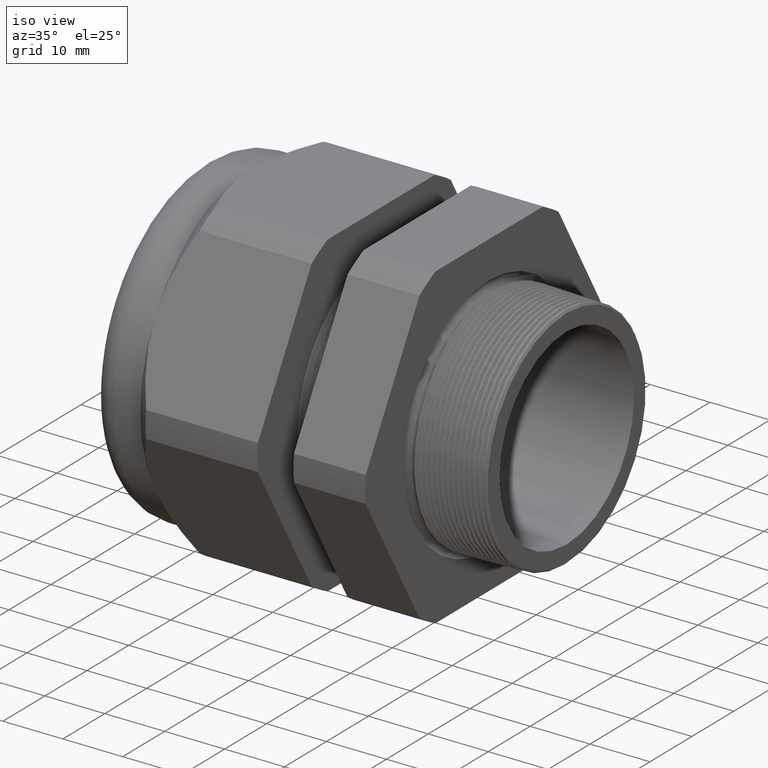
[diagram: clean part render]
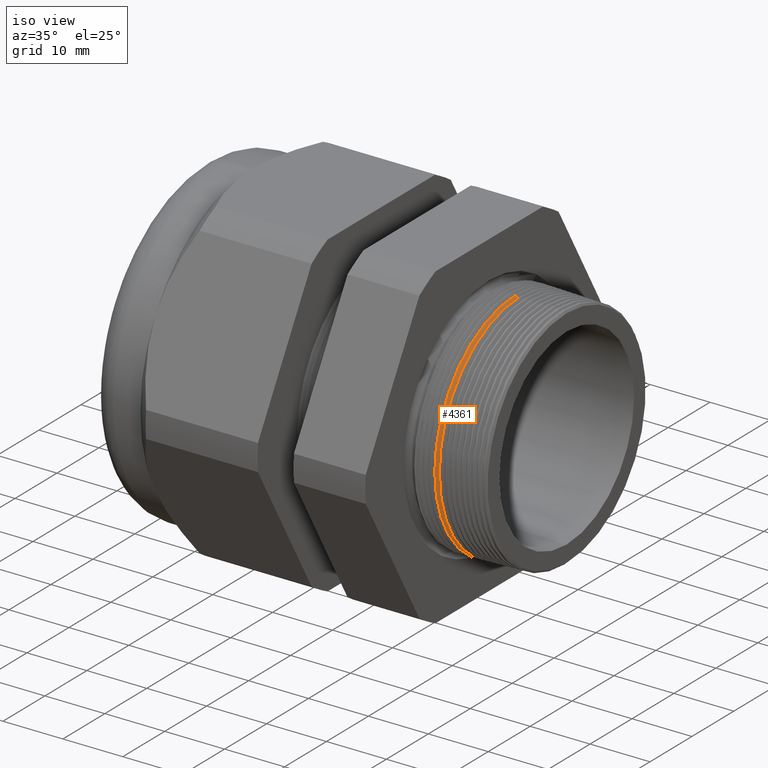
[diagram: same view with one face highlighted and labeled with its STEP entity id]
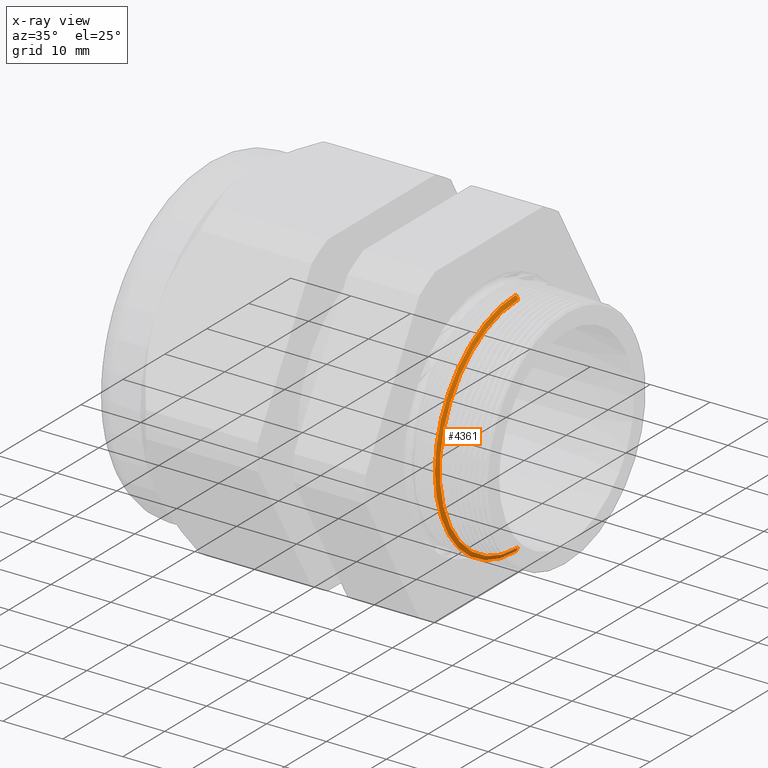
[diagram: x-ray of the same camera — body ghosted, the highlighted face saturated]
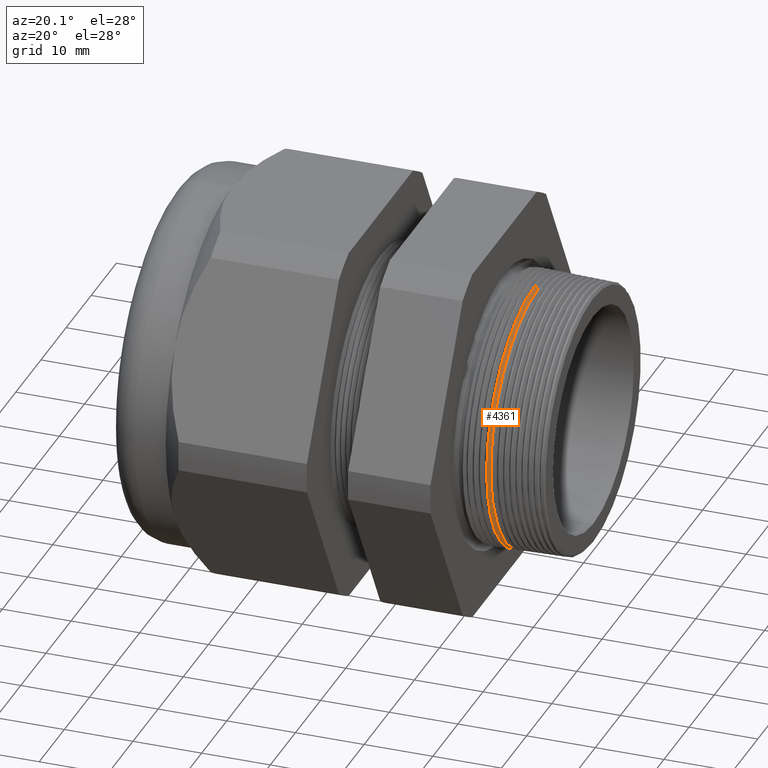
[diagram: same view with one face highlighted and labeled with its STEP entity id]
A machine part, iso view. The second image highlights one B-rep face of the part: STEP entity #4361.
The next image is the same camera in x-ray: the body ghosted, the highlighted face saturated — about 4% of this face is hidden behind the body in this view.
A second angle (auxiliary view) of the same face is appended — the face is thin or edge-on in the first view.
In plain terms, the highlighted conical surface has half-angle 61.5 deg.
Its self-contained STEP definition (entity closure, byte-faithful):
#467 = VERTEX_POINT ( 'NONE', #1299 ) ;
#470 = VERTEX_POINT ( 'NONE', #1356 ) ;
#1299 = CARTESIAN_POINT ( 'NONE',  ( -0.1184707356790752100, 9.171299931486034300E-017, -0.7359962276773550600 ) ) ;
#1356 = CARTESIAN_POINT ( 'NONE',  ( -0.1184707356790752100, 0.0000000000000000000, 0.7359962276773550600 ) ) ;
#2433 = CARTESIAN_POINT ( 'NONE',  ( -0.1349999999999999500, 0.0000000000000000000, 0.0000000000000000000 ) ) ;
#2435 = CONICAL_SURFACE ( 'NONE', #2498, 0.7664393454711850900, 1.073377489976501800 ) ;
#2436 = FACE_OUTER_BOUND ( 'NONE', #4346, .T. ) ;
#2451 = DIRECTION ( 'NONE',  ( 0.0000000000000000000, 0.0000000000000000000, -1.000000000000000000 ) ) ;
#2452 = DIRECTION ( 'NONE',  ( 1.000000000000000000, 0.0000000000000000000, 0.0000000000000000000 ) ) ;
#2453 = AXIS2_PLACEMENT_3D ( 'NONE', #2459, #2452, #2451 ) ;
#2454 = CIRCLE ( 'NONE', #2453, 0.7359962276773550600 ) ;
#2459 = CARTESIAN_POINT ( 'NONE',  ( -0.1184707356790752100, 0.0000000000000000000, 0.0000000000000000000 ) ) ;
#2496 = DIRECTION ( 'NONE',  ( 0.0000000000000000000, 0.0000000000000000000, 1.000000000000000000 ) ) ;
#2497 = DIRECTION ( 'NONE',  ( -1.000000000000000000, 0.0000000000000000000, 0.0000000000000000000 ) ) ;
#2498 = AXIS2_PLACEMENT_3D ( 'NONE', #2433, #2497, #2496 ) ;
#2828 = DIRECTION ( 'NONE',  ( 0.0000000000000000000, 0.0000000000000000000, 1.000000000000000000 ) ) ;
#2829 = DIRECTION ( 'NONE',  ( 1.000000000000000000, 0.0000000000000000000, 0.0000000000000000000 ) ) ;
#2830 = CARTESIAN_POINT ( 'NONE',  ( -0.1324760000967738800, 0.0000000000000000000, 0.0000000000000000000 ) ) ;
#2831 = AXIS2_PLACEMENT_3D ( 'NONE', #2830, #2829, #2828 ) ;
#2832 = CIRCLE ( 'NONE', #2831, 0.7617907159330720200 ) ;
#3041 = CARTESIAN_POINT ( 'NONE',  ( -0.1324760000967738800, 0.0000000000000000000, 0.7617907159330720200 ) ) ;
#3081 = CARTESIAN_POINT ( 'NONE',  ( -0.1324760000967738800, 9.330064314889124700E-017, -0.7617907159330720200 ) ) ;
#3093 = DIRECTION ( 'NONE',  ( -0.4771587602596179000, 0.0000000000000000000, 0.8788171126619600500 ) ) ;
#3094 = VECTOR ( 'NONE', #3093, 39.37007874015748900 ) ;
#3095 = CARTESIAN_POINT ( 'NONE',  ( -0.1349999999999999500, 0.0000000000000000000, 0.7664393454711850900 ) ) ;
#3100 = LINE ( 'NONE', #3095, #3094 ) ;
#3129 = DIRECTION ( 'NONE',  ( -0.4771587602596179000, 1.076240564057388100E-016, -0.8788171126619600500 ) ) ;
#3130 = VECTOR ( 'NONE', #3129, 39.37007874015748900 ) ;
#3131 = CARTESIAN_POINT ( 'NONE',  ( -0.1349999999999999500, 9.386174911718792200E-017, -0.7664393454711850900 ) ) ;
#3132 = LINE ( 'NONE', #3131, #3130 ) ;
#4307 = ORIENTED_EDGE ( 'NONE', *, *, #4689, .T. ) ;
#4315 = ORIENTED_EDGE ( 'NONE', *, *, #4562, .T. ) ;
#4345 = ORIENTED_EDGE ( 'NONE', *, *, #4704, .F. ) ;
#4346 = EDGE_LOOP ( 'NONE', ( #4345, #4347, #4307, #4315 ) ) ;
#4347 = ORIENTED_EDGE ( 'NONE', *, *, #4348, .F. ) ;
#4348 = EDGE_CURVE ( 'NONE', #470, #467, #2454, .T. ) ;
#4361 = ADVANCED_FACE ( 'NONE', ( #2436 ), #2435, .T. ) ;
#4562 = EDGE_CURVE ( 'NONE', #4684, #4700, #2832, .T. ) ;
#4684 = VERTEX_POINT ( 'NONE', #3041 ) ;
#4689 = EDGE_CURVE ( 'NONE', #470, #4684, #3100, .T. ) ;
#4700 = VERTEX_POINT ( 'NONE', #3081 ) ;
#4704 = EDGE_CURVE ( 'NONE', #467, #4700, #3132, .T. ) ;